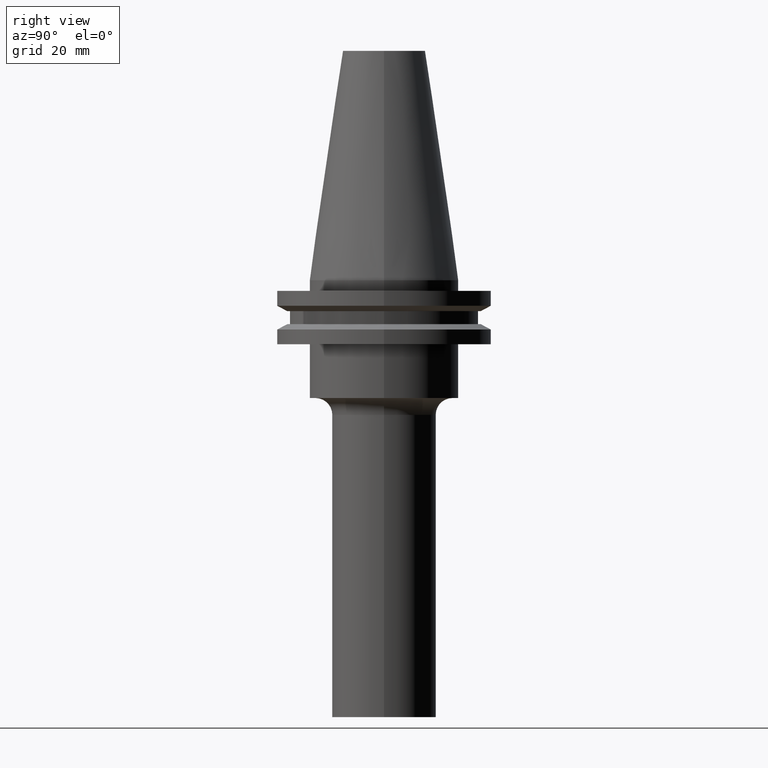
[diagram: clean part render]
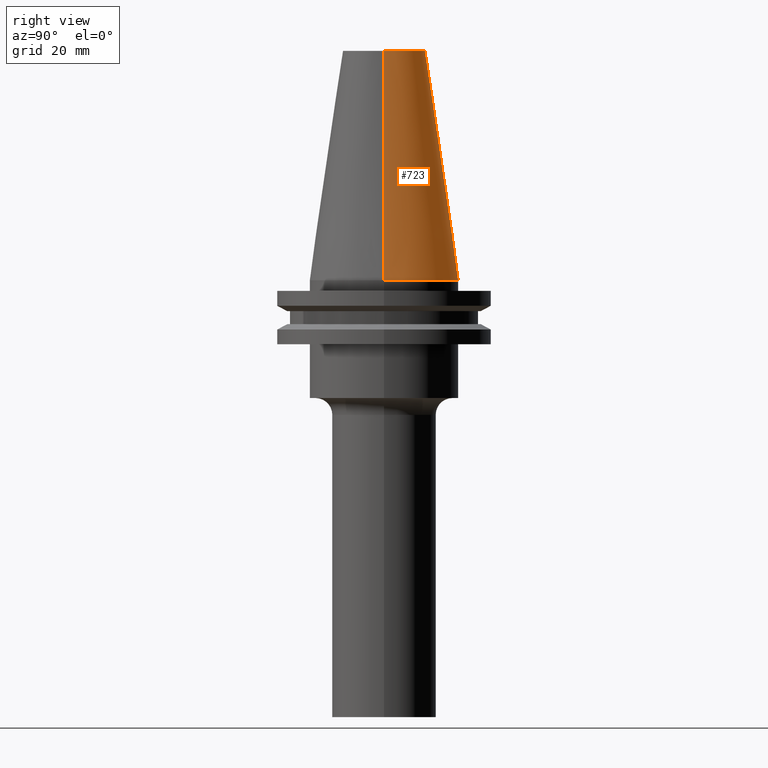
[diagram: same view with one face highlighted and labeled with its STEP entity id]
A machine part, right view. The second image highlights one B-rep face of the part: STEP entity #723.
In plain terms, the highlighted conical surface has half-angle 8.297 deg.
Its self-contained STEP definition (entity closure, byte-faithful):
#25 = DIRECTION ( 'NONE',  ( 0.000000000000000000, 0.000000000000000000, -1.000000000000000000 ) ) ;
#38 = EDGE_CURVE ( 'NONE', #159, #600, #411, .T. ) ;
#40 = VERTEX_POINT ( 'NONE', #196 ) ;
#43 = ORIENTED_EDGE ( 'NONE', *, *, #766, .F. ) ;
#65 = AXIS2_PLACEMENT_3D ( 'NONE', #340, #622, #392 ) ;
#82 = CONICAL_SURFACE ( 'NONE', #465, 22.22500000000000142, 0.1448138465474119174 ) ;
#84 = DIRECTION ( 'NONE',  ( -0.1443082272672999711, 0.000000000000000000, -0.9895327864921755756 ) ) ;
#110 = CARTESIAN_POINT ( 'NONE',  ( 22.22500000000000142, 2.721777511104992849E-15, 0.000000000000000000 ) ) ;
#126 = CIRCLE ( 'NONE', #65, 12.27178102086201150 ) ;
#154 = ORIENTED_EDGE ( 'NONE', *, *, #422, .T. ) ;
#159 = VERTEX_POINT ( 'NONE', #616 ) ;
#191 = DIRECTION ( 'NONE',  ( 1.000000000000000000, 0.000000000000000000, 0.000000000000000000 ) ) ;
#196 = CARTESIAN_POINT ( 'NONE',  ( 12.27178102086201150, 2.112318622904291439E-15, 68.25000000000000000 ) ) ;
#254 = EDGE_CURVE ( 'NONE', #777, #600, #391, .T. ) ;
#282 = CARTESIAN_POINT ( 'NONE',  ( -12.27178102086201150, 0.000000000000000000, 68.25000000000000000 ) ) ;
#296 = ORIENTED_EDGE ( 'NONE', *, *, #254, .F. ) ;
#340 = CARTESIAN_POINT ( 'NONE',  ( 0.000000000000000000, 0.000000000000000000, 68.25000000000000000 ) ) ;
#355 = ORIENTED_EDGE ( 'NONE', *, *, #38, .T. ) ;
#356 = DIRECTION ( 'NONE',  ( 0.1443082272672999711, 1.767266086135276757E-17, -0.9895327864921755756 ) ) ;
#377 = CARTESIAN_POINT ( 'NONE',  ( 0.000000000000000000, 0.000000000000000000, 0.000000000000000000 ) ) ;
#386 = FACE_OUTER_BOUND ( 'NONE', #620, .T. ) ;
#391 = LINE ( 'NONE', #744, #457 ) ;
#392 = DIRECTION ( 'NONE',  ( 1.000000000000000000, 0.000000000000000000, 0.000000000000000000 ) ) ;
#411 = CIRCLE ( 'NONE', #492, 22.22500000000000142 ) ;
#422 = EDGE_CURVE ( 'NONE', #40, #159, #654, .T. ) ;
#448 = CARTESIAN_POINT ( 'NONE',  ( 0.000000000000000000, 0.000000000000000000, 0.000000000000000000 ) ) ;
#457 = VECTOR ( 'NONE', #84, 999.9999999999998863 ) ;
#465 = AXIS2_PLACEMENT_3D ( 'NONE', #448, #25, #756 ) ;
#492 = AXIS2_PLACEMENT_3D ( 'NONE', #377, #603, #191 ) ;
#575 = VECTOR ( 'NONE', #356, 999.9999999999998863 ) ;
#600 = VERTEX_POINT ( 'NONE', #629 ) ;
#603 = DIRECTION ( 'NONE',  ( -0.000000000000000000, -0.000000000000000000, 1.000000000000000000 ) ) ;
#616 = CARTESIAN_POINT ( 'NONE',  ( 22.22500000000000142, 2.721777511104992849E-15, 0.000000000000000000 ) ) ;
#620 = EDGE_LOOP ( 'NONE', ( #43, #154, #355, #296 ) ) ;
#622 = DIRECTION ( 'NONE',  ( -0.000000000000000000, -0.000000000000000000, 1.000000000000000000 ) ) ;
#629 = CARTESIAN_POINT ( 'NONE',  ( -22.22500000000000142, 0.000000000000000000, 0.000000000000000000 ) ) ;
#654 = LINE ( 'NONE', #110, #575 ) ;
#723 = ADVANCED_FACE ( 'NONE', ( #386 ), #82, .T. ) ;
#744 = CARTESIAN_POINT ( 'NONE',  ( -22.22500000000000142, 0.000000000000000000, 0.000000000000000000 ) ) ;
#756 = DIRECTION ( 'NONE',  ( -1.000000000000000000, 0.000000000000000000, 0.000000000000000000 ) ) ;
#766 = EDGE_CURVE ( 'NONE', #40, #777, #126, .T. ) ;
#777 = VERTEX_POINT ( 'NONE', #282 ) ;